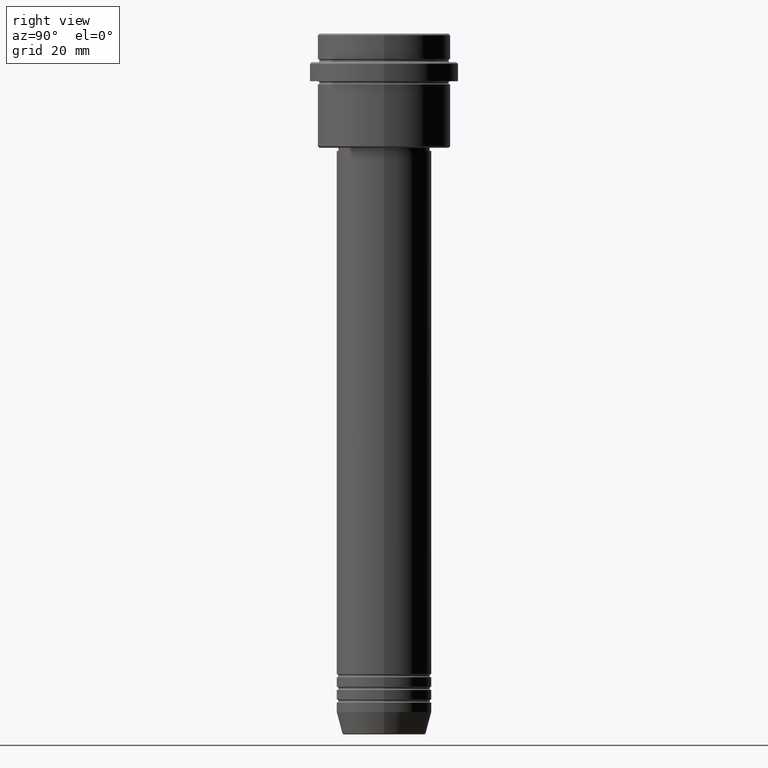
[diagram: clean part render]
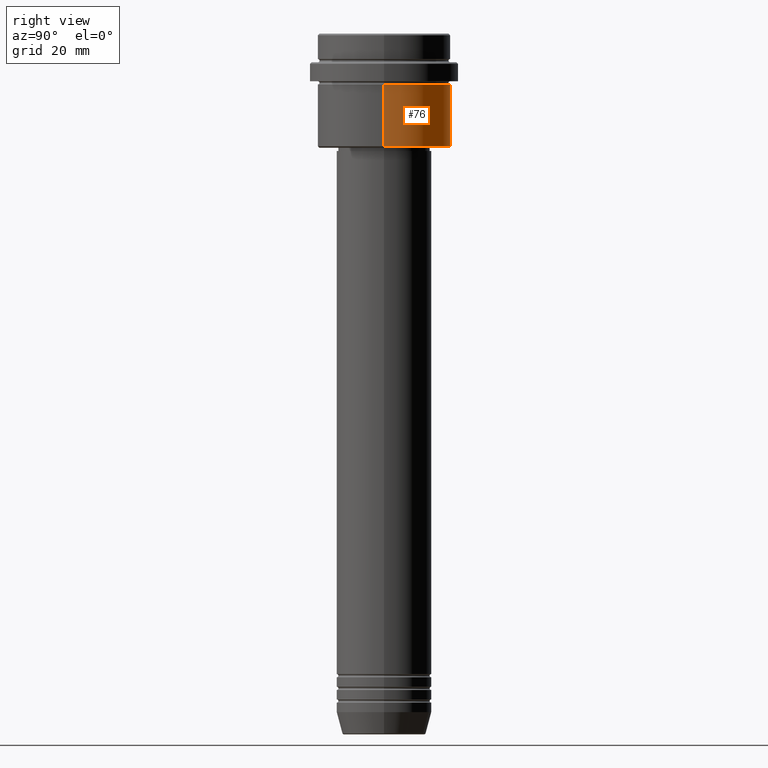
[diagram: same view with one face highlighted and labeled with its STEP entity id]
A machine part, right view. The second image highlights one B-rep face of the part: STEP entity #76.
In plain terms, the highlighted cylindrical surface (partial cylindrical patch) has radius 21 mm, axis along (-0, -0, 1).
Its self-contained STEP definition (entity closure, byte-faithful):
#62 = VECTOR ( 'NONE', #1214, 1000.000000000000000 ) ;
#67 = VERTEX_POINT ( 'NONE', #582 ) ;
#76 = ADVANCED_FACE ( 'NONE', ( #1415 ), #318, .T. ) ;
#88 = EDGE_CURVE ( 'NONE', #67, #662, #426, .T. ) ;
#92 = ORIENTED_EDGE ( 'NONE', *, *, #88, .F. ) ;
#295 = ORIENTED_EDGE ( 'NONE', *, *, #1380, .T. ) ;
#318 = CYLINDRICAL_SURFACE ( 'NONE', #721, 21.00000000000000000 ) ;
#352 = CARTESIAN_POINT ( 'NONE',  ( 0.000000000000000000, 0.000000000000000000, -16.00000000000000355 ) ) ;
#419 = CARTESIAN_POINT ( 'NONE',  ( 0.000000000000000000, 0.000000000000000000, 0.000000000000000000 ) ) ;
#426 = LINE ( 'NONE', #1328, #62 ) ;
#440 = CARTESIAN_POINT ( 'NONE',  ( 0.000000000000000000, 0.000000000000000000, -35.49999999999997868 ) ) ;
#444 = DIRECTION ( 'NONE',  ( -0.000000000000000000, -0.000000000000000000, 1.000000000000000000 ) ) ;
#468 = DIRECTION ( 'NONE',  ( 1.000000000000000000, 0.000000000000000000, 0.000000000000000000 ) ) ;
#572 = CARTESIAN_POINT ( 'NONE',  ( -21.00000000000000000, 2.571758278209441661E-15, -16.00000000000000355 ) ) ;
#582 = CARTESIAN_POINT ( 'NONE',  ( 21.00000000000000000, 0.000000000000000000, -35.49999999999997868 ) ) ;
#589 = CARTESIAN_POINT ( 'NONE',  ( 21.00000000000000000, 0.000000000000000000, -16.00000000000000355 ) ) ;
#619 = DIRECTION ( 'NONE',  ( -0.000000000000000000, -0.000000000000000000, 1.000000000000000000 ) ) ;
#637 = CIRCLE ( 'NONE', #1342, 21.00000000000000000 ) ;
#647 = CARTESIAN_POINT ( 'NONE',  ( -21.00000000000000000, 2.571758278209441661E-15, 0.000000000000000000 ) ) ;
#653 = LINE ( 'NONE', #647, #992 ) ;
#662 = VERTEX_POINT ( 'NONE', #589 ) ;
#681 = CARTESIAN_POINT ( 'NONE',  ( -21.00000000000000000, 2.571758278209441661E-15, -35.49999999999997868 ) ) ;
#721 = AXIS2_PLACEMENT_3D ( 'NONE', #419, #1207, #856 ) ;
#766 = AXIS2_PLACEMENT_3D ( 'NONE', #352, #1033, #468 ) ;
#772 = ORIENTED_EDGE ( 'NONE', *, *, #1391, .F. ) ;
#814 = ORIENTED_EDGE ( 'NONE', *, *, #1321, .T. ) ;
#856 = DIRECTION ( 'NONE',  ( 1.000000000000000000, 0.000000000000000000, 0.000000000000000000 ) ) ;
#878 = DIRECTION ( 'NONE',  ( -1.000000000000000000, 0.000000000000000000, 0.000000000000000000 ) ) ;
#984 = EDGE_LOOP ( 'NONE', ( #295, #814, #772, #92 ) ) ;
#992 = VECTOR ( 'NONE', #444, 1000.000000000000000 ) ;
#1008 = VERTEX_POINT ( 'NONE', #572 ) ;
#1033 = DIRECTION ( 'NONE',  ( -0.000000000000000000, -0.000000000000000000, 1.000000000000000000 ) ) ;
#1207 = DIRECTION ( 'NONE',  ( -0.000000000000000000, -0.000000000000000000, 1.000000000000000000 ) ) ;
#1214 = DIRECTION ( 'NONE',  ( -0.000000000000000000, -0.000000000000000000, 1.000000000000000000 ) ) ;
#1275 = CIRCLE ( 'NONE', #766, 21.00000000000000000 ) ;
#1321 = EDGE_CURVE ( 'NONE', #1416, #1008, #653, .T. ) ;
#1328 = CARTESIAN_POINT ( 'NONE',  ( 21.00000000000000000, 0.000000000000000000, 0.000000000000000000 ) ) ;
#1342 = AXIS2_PLACEMENT_3D ( 'NONE', #440, #619, #878 ) ;
#1380 = EDGE_CURVE ( 'NONE', #67, #1416, #637, .T. ) ;
#1391 = EDGE_CURVE ( 'NONE', #662, #1008, #1275, .T. ) ;
#1415 = FACE_OUTER_BOUND ( 'NONE', #984, .T. ) ;
#1416 = VERTEX_POINT ( 'NONE', #681 ) ;